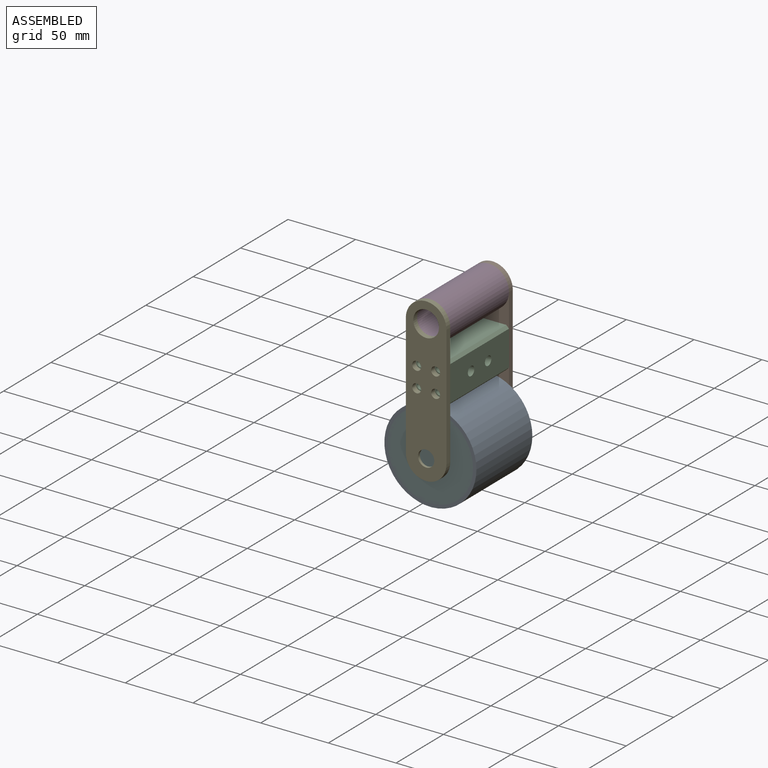
[diagram: assembled view]
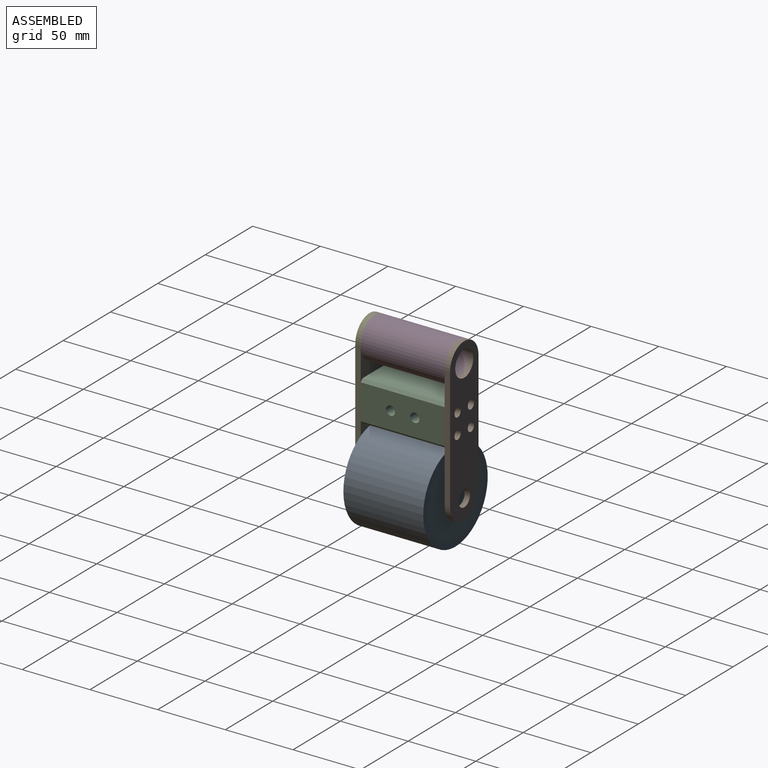
[diagram: assembled view, second angle]
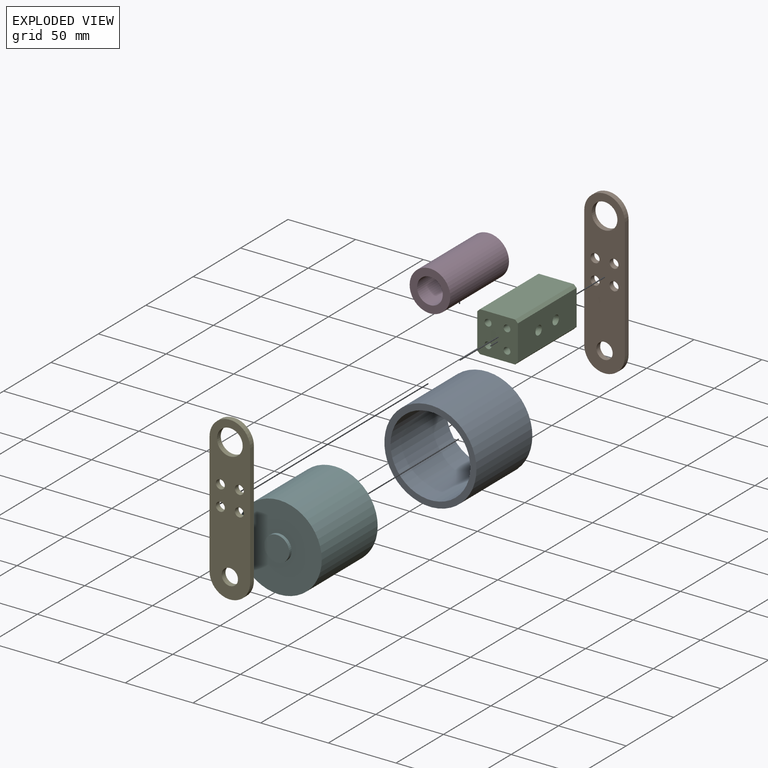
[diagram: exploded view]
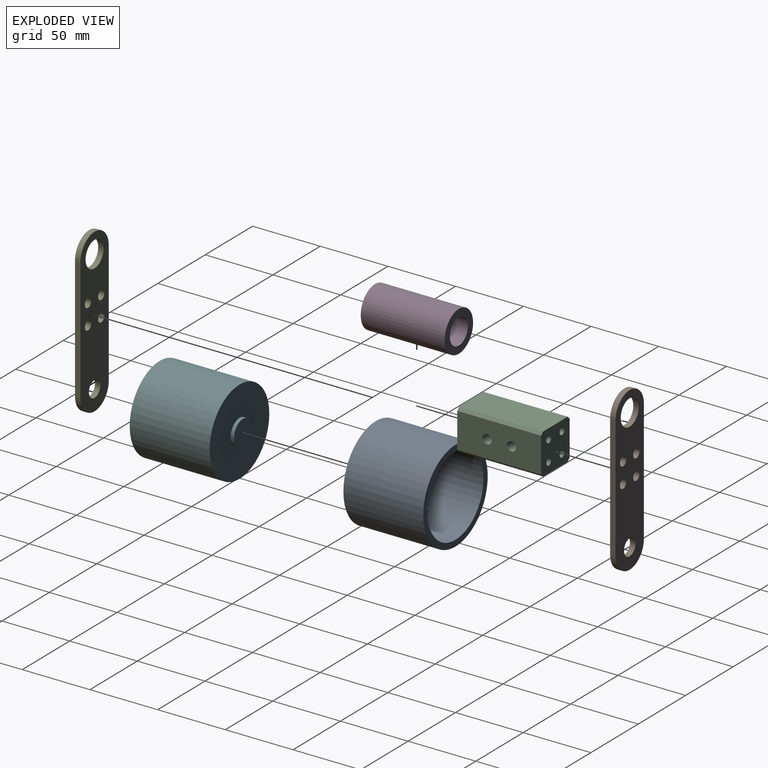
[diagram: exploded view, second angle]
ASSEMBLY  parts=6 mates=4
PART A: 4 faces, bbox 68x59x68 mm
  f0: cylinder r=29.5mm len=59mm, axis (0,1,0), area 10935.9mm2, adj f2,f3
  f1: cylinder r=34mm len=68mm, axis (0,1,0), area 12604.1mm2, adj f2,f3
  f2: plane 68x68mm, normal (0,-1,0), area 897.7mm2, adj f0,f1
  f3: plane 68x68mm, normal (0,1,0), area 897.7mm2, adj f0,f1
PART B: 12 faces, bbox 30x4x120 mm
  f0: plane 89.94x4mm, normal (1,0,0), area 359.8mm2, adj f1,f3,f4,f5
  f1: cylinder r=15mm len=30mm, axis (0,1,0), area 189mm2, adj f0,f2,f4,f5
  f2: plane 89.94x4mm, normal (-1,0,0), area 359.8mm2, adj f1,f3,f4,f5
  f3: cylinder r=15mm len=30mm, axis (0,1,0), area 188.5mm2, adj f0,f2,f4,f5
  f4: plane 120x30mm, normal (0,-1,0), area 2873.4mm2, adj f0,f1,f2,f3,f6,f7,f8,f9
  f5: plane 120x30mm, normal (0,1,0), area 2873.4mm2, adj f0,f1,f2,f3,f6,f7,f8,f9
  f6: cylinder r=3.3mm len=6.6mm, axis (0,-1,0), area 82.9mm2, adj f4,f5
  f7: cylinder r=3.3mm len=6.6mm, axis (0,-1,0), area 82.9mm2, adj f4,f5
  f8: cylinder r=3.3mm len=6.6mm, axis (0,-1,0), area 82.9mm2, adj f4,f5
  f9: cylinder r=3.3mm len=6.6mm, axis (0,-1,0), area 82.9mm2, adj f4,f5
  f10: cylinder r=9.5mm len=19mm, axis (0,-1,0), area 238.8mm2, adj f4,f5
  f11: cylinder r=6mm len=12mm, axis (0,-1,0), area 150.8mm2, adj f4,f5
PART C: 30 faces, bbox 30x62x30 mm
  f0: plane 62x26mm, normal (0,0,-1), area 1612mm2, adj f4,f5,f26,f27
  f1: plane 62x26mm, normal (1,0,0), area 1539.4mm2, adj f4,f5,f14,f16,f27,f28
  f2: plane 62x26mm, normal (0,0,1), area 1612mm2, adj f4,f5,f28,f29
  f3: plane 62x26mm, normal (-1,0,0), area 1612mm2, adj f4,f5,f26,f29
  f4: plane 30x30mm, normal (0,-1,0), area 813.5mm2, adj f0,f1,f2,f3,f6,f8,f10,f12
  f5: plane 30x30mm, normal (0,1,0), area 813.5mm2, adj f0,f1,f2,f3,f18,f20,f22,f24
  f6: cylinder r=2.5mm len=20mm, axis (0,-1,0), area 314.2mm2, adj f4,f7
  f7: cone r=0mm half-angle=59deg, axis (0,-1,0), area 22.9mm2, adj f6
  f8: cylinder r=2.5mm len=20mm, axis (0,-1,0), area 314.2mm2, adj f4,f9
  f9: cone r=0mm half-angle=59deg, axis (0,-1,0), area 22.9mm2, adj f8
  f10: cylinder r=2.5mm len=20mm, axis (0,-1,0), area 314.2mm2, adj f4,f11
  f11: cone r=0mm half-angle=59deg, axis (0,-1,0), area 22.9mm2, adj f10
  f12: cylinder r=2.5mm len=20mm, axis (0,-1,0), area 314.2mm2, adj f4,f13
  f13: cone r=0mm half-angle=59deg, axis (0,-1,0), area 22.9mm2, adj f12
  f14: cylinder r=3.4mm len=20mm, axis (1,0,0), area 427.3mm2, adj f1,f15
  f15: cone r=0mm half-angle=59deg, axis (1,0,0), area 42.4mm2, adj f14
  f16: cylinder r=3.4mm len=20mm, axis (1,0,0), area 427.3mm2, adj f1,f17
  f17: cone r=0mm half-angle=59deg, axis (1,0,0), area 42.4mm2, adj f16
  f18: cylinder r=2.5mm len=20mm, axis (0,1,0), area 314.2mm2, adj f5,f19
  f19: cone r=0mm half-angle=59deg, axis (0,1,0), area 22.9mm2, adj f18
  f20: cylinder r=2.5mm len=20mm, axis (0,1,0), area 314.2mm2, adj f5,f21
  f21: cone r=0mm half-angle=59deg, axis (0,1,0), area 22.9mm2, adj f20
  f22: cylinder r=2.5mm len=20mm, axis (0,1,0), area 314.2mm2, adj f5,f23
  f23: cone r=0mm half-angle=59deg, axis (0,1,0), area 22.9mm2, adj f22
  f24: cylinder r=2.5mm len=20mm, axis (0,1,0), area 314.2mm2, adj f5,f25
  f25: cone r=0mm half-angle=59deg, axis (0,1,0), area 22.9mm2, adj f24
  f26: plane 62x2mm, normal (-0.71,0,-0.71), area 175.4mm2, adj f0,f3,f4,f5
  f27: plane 62x2mm, normal (0.71,0,-0.71), area 175.4mm2, adj f0,f1,f4,f5
  f28: plane 62x2mm, normal (0.71,0,0.71), area 175.4mm2, adj f1,f2,f4,f5
  f29: plane 62x2mm, normal (-0.71,0,0.71), area 175.4mm2, adj f2,f3,f4,f5
PART D: 4 faces, bbox 30x62x30 mm
  f0: cylinder r=9.5mm len=62mm, axis (0,1,0), area 3700.8mm2, adj f2,f3
  f1: cylinder r=15mm len=62mm, axis (0,1,0), area 5843.4mm2, adj f2,f3
  f2: plane 30x30mm, normal (0,-1,0), area 423.3mm2, adj f0,f1
  f3: plane 30x30mm, normal (0,1,0), area 423.3mm2, adj f0,f1
PART E: same geometry as B
PART F: 7 faces, bbox 63x64x63 mm
  f0: cylinder r=31.5mm len=63mm, axis (0,1,0), area 11677.3mm2, adj f1,f2
  f1: plane 63x63mm, normal (0,-1,0), area 2848.4mm2, adj f0,f3
  f2: plane 63x63mm, normal (0,1,0), area 2848.4mm2, adj f0,f5
  f3: cylinder r=9.25mm len=18.5mm, axis (0,1,0), area 145.3mm2, adj f1,f4
  f4: plane 18.5x18.5mm, normal (0,-1,0), area 268.8mm2, adj f3
  f5: cylinder r=9.25mm len=18.5mm, axis (0,-1,0), area 145.3mm2, adj f2,f6
  f6: plane 18.5x18.5mm, normal (0,1,0), area 268.8mm2, adj f5
PLACE A t=(-40.18,-83.14,51.95)mm
PLACE B t=(-40.18,-76.64,105.78)mm
PLACE C t=(-42.77,-80.64,101)mm
PLACE D t=(-40.18,-80.64,141.95)mm
PLACE E t=(-40.18,-142.64,105.78)mm
PLACE F t=(-40.18,-83.14,51.95)mm
MATE fastened A.f0 <-> F.f0  axis (0,1,0) through (-40.18,-142.14,51.95)mm
MATE fastened E.f6 <-> C.f6  axis (0,1,0) through (-47.18,-142.64,111.95)mm
MATE fastened D.f0 <-> B.f1  axis (0,1,0) through (-40.18,-80.64,141.95)mm
MATE fastened D.f0 <-> E.f1  axis (0,1,0) through (-40.18,-142.64,141.95)mm
